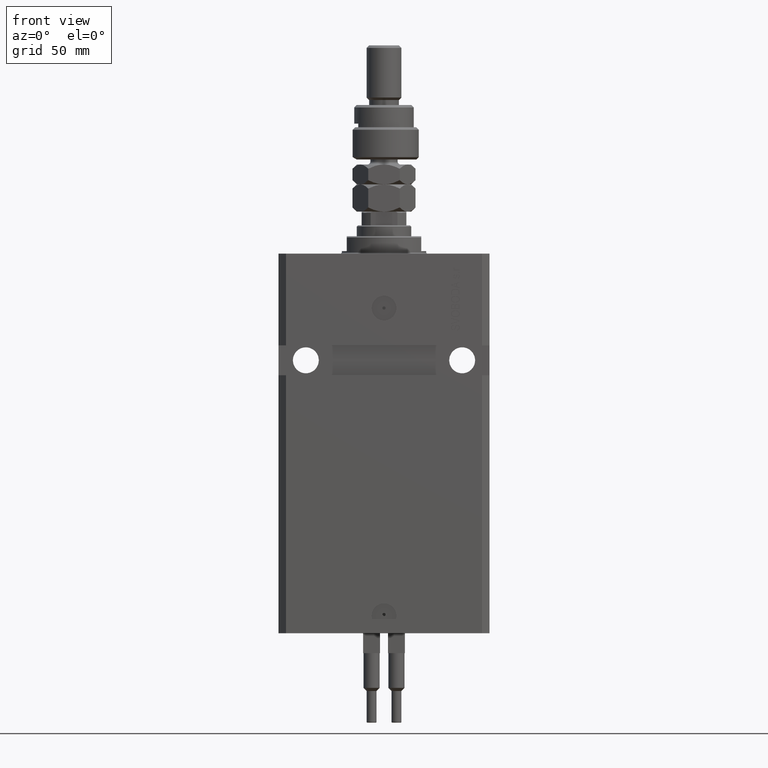
[diagram: clean part render]
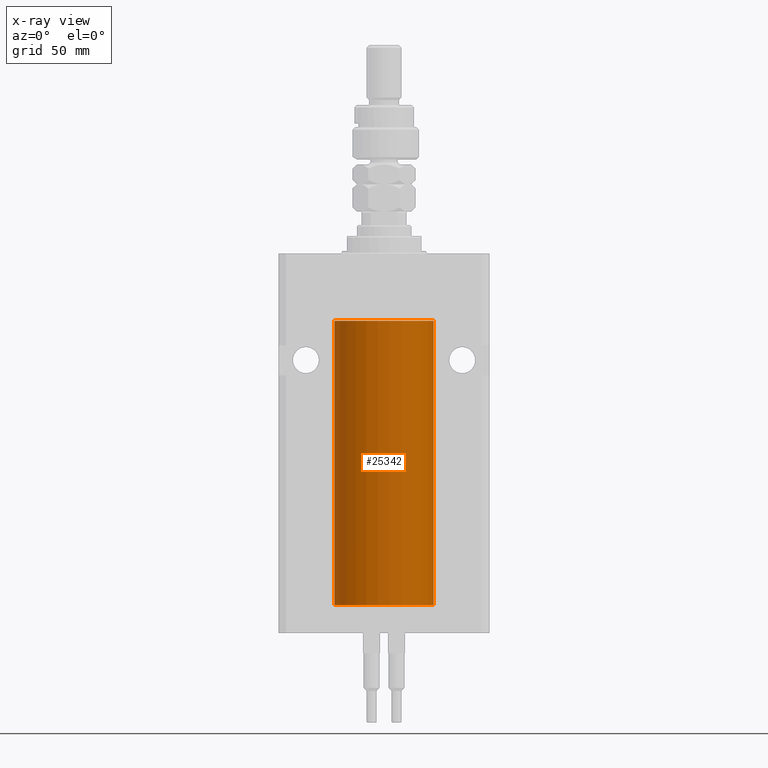
[diagram: x-ray — body ghosted, one internal face saturated and labeled with its STEP entity id]
A machine part, front view, then the same camera in x-ray: the body is ghosted and one INTERNAL B-rep face — a face not visible from any outside direction — is saturated and labeled: STEP entity #25342.
In plain terms, the highlighted cylindrical surface (partial cylindrical patch) has radius 20 mm, axis along (0, 0, 1).
Its self-contained STEP definition (entity closure, byte-faithful):
#270 = DIRECTION ( 'NONE',  ( -0.000000000000000000, -0.000000000000000000, 1.000000000000000000 ) ) ;
#5685 = DIRECTION ( 'NONE',  ( -0.000000000000000000, -0.000000000000000000, 1.000000000000000000 ) ) ;
#5686 = CARTESIAN_POINT ( 'NONE',  ( 19.99766246719553209, -0.3267907458473790494, -139.5571608607968699 ) ) ;
#7249 = DIRECTION ( 'NONE',  ( 1.000000000000000000, 0.000000000000000000, 0.000000000000000000 ) ) ;
#7869 = EDGE_CURVE ( 'NONE', #13927, #17785, #33005, .T. ) ;
#7929 = CARTESIAN_POINT ( 'NONE',  ( -20.00000000000000000, 2.449293598294706119E-15, -27.10000000000000142 ) ) ;
#8042 = LINE ( 'NONE', #46956, #46082 ) ;
#8270 = CARTESIAN_POINT ( 'NONE',  ( 20.00000000000010303, 3.555666311577537537E-13, -138.3749999999966178 ) ) ;
#8784 = CARTESIAN_POINT ( 'NONE',  ( -20.00000000000000000, 2.449293598294706119E-15, -141.5999999999999943 ) ) ;
#9079 = DIRECTION ( 'NONE',  ( 1.000000000000000000, 0.000000000000000000, 0.000000000000000000 ) ) ;
#10275 = ORIENTED_EDGE ( 'NONE', *, *, #7869, .T. ) ;
#10637 = AXIS2_PLACEMENT_3D ( 'NONE', #10895, #26704, #7249 ) ;
#10895 = CARTESIAN_POINT ( 'NONE',  ( 0.000000000000000000, 0.000000000000000000, -27.10000000000000142 ) ) ;
#11149 = ORIENTED_EDGE ( 'NONE', *, *, #30204, .F. ) ;
#11506 = CARTESIAN_POINT ( 'NONE',  ( 0.000000000000000000, 0.000000000000000000, -141.5999999999999943 ) ) ;
#13225 = FACE_OUTER_BOUND ( 'NONE', #44574, .T. ) ;
#13477 = CARTESIAN_POINT ( 'NONE',  ( 0.000000000000000000, 0.000000000000000000, -141.5999999999999943 ) ) ;
#13927 = VERTEX_POINT ( 'NONE', #7929 ) ;
#14635 = CARTESIAN_POINT ( 'NONE',  ( 19.99023198964933812, -0.6250000000000839329, -138.9999999999999432 ) ) ;
#14863 = ORIENTED_EDGE ( 'NONE', *, *, #36053, .F. ) ;
#15285 = CARTESIAN_POINT ( 'NONE',  ( 20.00000000000000000, 0.000000000000000000, -141.5999999999999943 ) ) ;
#15651 = DIRECTION ( 'NONE',  ( 1.000000000000000000, 0.000000000000000000, 0.000000000000000000 ) ) ;
#17621 = CARTESIAN_POINT ( 'NONE',  ( 19.99023198964934167, -0.6250000000000767164, -139.1647941998272131 ) ) ;
#17785 = VERTEX_POINT ( 'NONE', #27323 ) ;
#18134 = DIRECTION ( 'NONE',  ( -0.000000000000000000, -0.000000000000000000, 1.000000000000000000 ) ) ;
#18527 = CARTESIAN_POINT ( 'NONE',  ( 19.99766790699043995, -0.3264769477312507995, -138.4426606383000262 ) ) ;
#19408 = DIRECTION ( 'NONE',  ( -0.000000000000000000, -0.000000000000000000, 1.000000000000000000 ) ) ;
#20810 = VERTEX_POINT ( 'NONE', #27950 ) ;
#21491 = CYLINDRICAL_SURFACE ( 'NONE', #37532, 20.00000000000000000 ) ;
#22358 = CARTESIAN_POINT ( 'NONE',  ( 20.00000000000000000, -2.179639976041341418E-15, -139.6249999999999716 ) ) ;
#23470 = ORIENTED_EDGE ( 'NONE', *, *, #38230, .T. ) ;
#25342 = ADVANCED_FACE ( 'NONE', ( #13225 ), #21491, .F. ) ;
#25656 = CARTESIAN_POINT ( 'NONE',  ( 19.99256494106949944, -0.5573539455062642700, -139.3264613235960496 ) ) ;
#25916 = LINE ( 'NONE', #34983, #43054 ) ;
#26704 = DIRECTION ( 'NONE',  ( 0.000000000000000000, 0.000000000000000000, 1.000000000000000000 ) ) ;
#26828 = CARTESIAN_POINT ( 'NONE',  ( 20.00000000000000000, -0.1632180151482494623, -138.3749999999997442 ) ) ;
#27323 = CARTESIAN_POINT ( 'NONE',  ( 20.00000000000000000, 0.000000000000000000, -27.10000000000000142 ) ) ;
#27324 = DIRECTION ( 'NONE',  ( 0.000000000000000000, 0.000000000000000000, 1.000000000000000000 ) ) ;
#27950 = CARTESIAN_POINT ( 'NONE',  ( 19.99023198964933812, -0.6250000000000839329, -138.9999999999999432 ) ) ;
#28265 = EDGE_CURVE ( 'NONE', #20810, #35754, #48042, .T. ) ;
#29848 = LINE ( 'NONE', #15285, #46887 ) ;
#30204 = EDGE_CURVE ( 'NONE', #31790, #30539, #40079, .T. ) ;
#30539 = VERTEX_POINT ( 'NONE', #48496 ) ;
#31773 = AXIS2_PLACEMENT_3D ( 'NONE', #11506, #27324, #15651 ) ;
#31790 = VERTEX_POINT ( 'NONE', #8784 ) ;
#31796 = VERTEX_POINT ( 'NONE', #8270 ) ;
#33005 = CIRCLE ( 'NONE', #10637, 20.00000000000000000 ) ;
#33205 = ORIENTED_EDGE ( 'NONE', *, *, #46429, .T. ) ;
#34983 = CARTESIAN_POINT ( 'NONE',  ( -20.00000000000000000, 2.449293598294706119E-15, -141.5999999999999943 ) ) ;
#35468 = ORIENTED_EDGE ( 'NONE', *, *, #28265, .T. ) ;
#35754 = VERTEX_POINT ( 'NONE', #22358 ) ;
#36053 = EDGE_CURVE ( 'NONE', #31796, #17785, #29848, .T. ) ;
#37532 = AXIS2_PLACEMENT_3D ( 'NONE', #13477, #5685, #9079 ) ;
#37758 = CARTESIAN_POINT ( 'NONE',  ( 19.99257096259849931, -0.5571491910957772076, -138.6731986224609727 ) ) ;
#38230 = EDGE_CURVE ( 'NONE', #31796, #20810, #40664, .T. ) ;
#38278 = CARTESIAN_POINT ( 'NONE',  ( 19.99023198964933812, -0.6250000000000911493, -138.8350317194948786 ) ) ;
#39067 = ORIENTED_EDGE ( 'NONE', *, *, #49511, .F. ) ;
#40079 = CIRCLE ( 'NONE', #31773, 20.00000000000000000 ) ;
#40664 = B_SPLINE_CURVE_WITH_KNOTS ( 'NONE', 3,
 ( #50419, #26828, #18527, #37758, #38278, #14635 ),
 .UNSPECIFIED., .F., .F.,
 ( 4, 2, 4 ),
 ( 0.001954154509844120095, 0.002442840306376502235, 0.002931526102908884376 ),
 .UNSPECIFIED. ) ;
#41257 = CARTESIAN_POINT ( 'NONE',  ( 19.99023198964933812, -0.6250000000000839329, -138.9999999999999432 ) ) ;
#43054 = VECTOR ( 'NONE', #18134, 1000.000000000000000 ) ;
#44574 = EDGE_LOOP ( 'NONE', ( #11149, #33205, #10275, #14863, #23470, #35468, #39067 ) ) ;
#44874 = CARTESIAN_POINT ( 'NONE',  ( 20.00000000000000000, -2.179639976041341418E-15, -139.6249999999999716 ) ) ;
#45628 = CARTESIAN_POINT ( 'NONE',  ( 20.00000000000000000, -0.1650670266421448706, -139.6250000000000000 ) ) ;
#46082 = VECTOR ( 'NONE', #270, 1000.000000000000000 ) ;
#46429 = EDGE_CURVE ( 'NONE', #31790, #13927, #25916, .T. ) ;
#46887 = VECTOR ( 'NONE', #19408, 1000.000000000000000 ) ;
#46956 = CARTESIAN_POINT ( 'NONE',  ( 20.00000000000000000, 0.000000000000000000, -141.5999999999999943 ) ) ;
#48042 = B_SPLINE_CURVE_WITH_KNOTS ( 'NONE', 3,
 ( #41257, #17621, #25656, #5686, #45628, #44874 ),
 .UNSPECIFIED., .F., .F.,
 ( 4, 2, 4 ),
 ( 0.002931526102908884376, 0.003419696219975714574, 0.003907866337042544339 ),
 .UNSPECIFIED. ) ;
#48496 = CARTESIAN_POINT ( 'NONE',  ( 20.00000000000000000, 0.000000000000000000, -141.5999999999999943 ) ) ;
#49511 = EDGE_CURVE ( 'NONE', #30539, #35754, #8042, .T. ) ;
#50419 = CARTESIAN_POINT ( 'NONE',  ( 20.00000000000010303, 3.555666311577537537E-13, -138.3749999999966178 ) ) ;